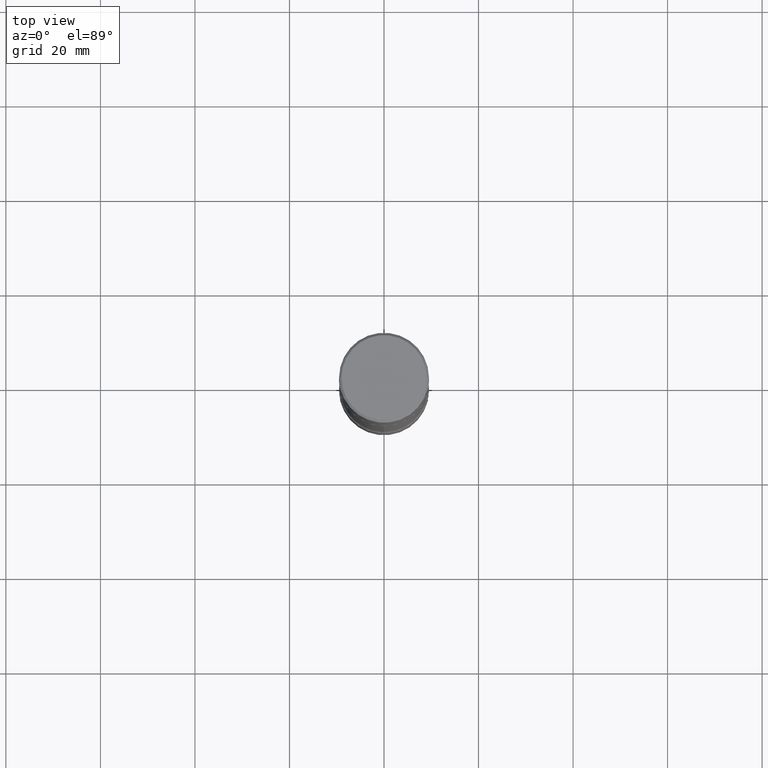
[diagram: clean part render]
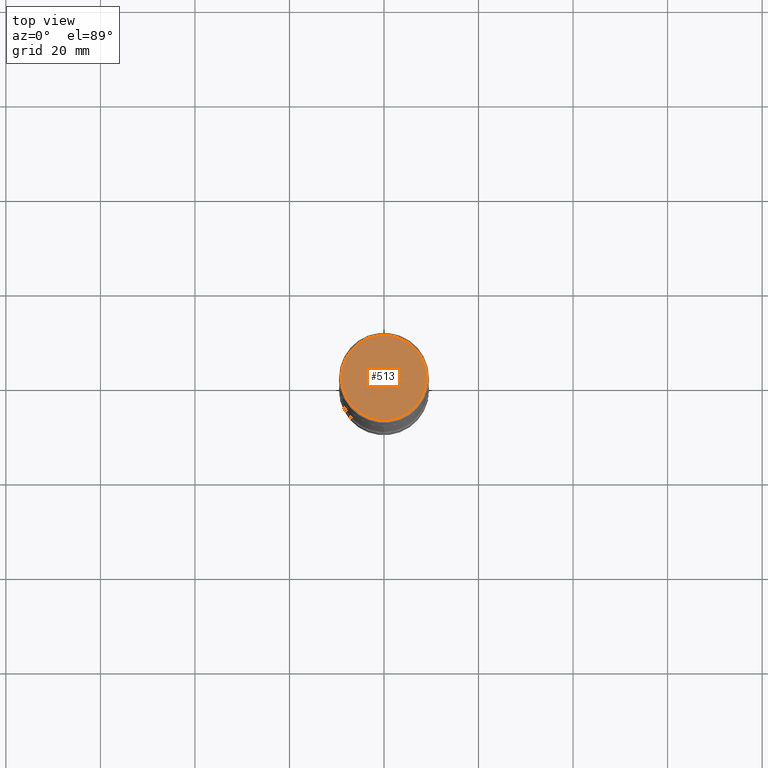
[diagram: same view with one face highlighted and labeled with its STEP entity id]
A machine part, top view. The second image highlights one B-rep face of the part: STEP entity #513.
In plain terms, the highlighted planar face has unit normal (0, -0, -1).
Its self-contained STEP definition (entity closure, byte-faithful):
#27 = AXIS2_PLACEMENT_3D ( 'NONE', #441, #355, #523 ) ;
#54 = EDGE_LOOP ( 'NONE', ( #302, #538 ) ) ;
#125 = EDGE_CURVE ( 'NONE', #153, #267, #252, .T. ) ;
#153 = VERTEX_POINT ( 'NONE', #407 ) ;
#155 = CIRCLE ( 'NONE', #496, 0.3550000000000008149 ) ;
#161 = CARTESIAN_POINT ( 'NONE',  ( 0.3550000000000008149, -2.538996582575045781E-15, 4.268512490117958041E-18 ) ) ;
#169 = DIRECTION ( 'NONE',  ( -2.445468806185136597E-29, 3.491481338843145583E-15, 1.000000000000000000 ) ) ;
#210 = AXIS2_PLACEMENT_3D ( 'NONE', #537, #273, #238 ) ;
#238 = DIRECTION ( 'NONE',  ( 1.000000000000000000, -6.982962677686265922E-15, 4.876231632511976973E-29 ) ) ;
#252 = CIRCLE ( 'NONE', #210, 0.3550000000000008149 ) ;
#262 = PLANE ( 'NONE',  #27 ) ;
#267 = VERTEX_POINT ( 'NONE', #161 ) ;
#273 = DIRECTION ( 'NONE',  ( -2.445468806185136597E-29, 3.491481338843145583E-15, 1.000000000000000000 ) ) ;
#302 = ORIENTED_EDGE ( 'NONE', *, *, #125, .T. ) ;
#342 = DIRECTION ( 'NONE',  ( 1.000000000000000000, -6.982962677686265922E-15, 4.876231632511976973E-29 ) ) ;
#345 = CARTESIAN_POINT ( 'NONE',  ( -1.043851414335219820E-46, 1.490343170380447200E-32, 4.268512490100411279E-18 ) ) ;
#355 = DIRECTION ( 'NONE',  ( 2.438088387897960049E-29, -3.491481338843145188E-15, -1.000000000000000000 ) ) ;
#398 = FACE_OUTER_BOUND ( 'NONE', #54, .T. ) ;
#407 = CARTESIAN_POINT ( 'NONE',  ( -0.3550000000000008149, 2.513866563967061380E-15, 4.268512490082953109E-18 ) ) ;
#441 = CARTESIAN_POINT ( 'NONE',  ( 2.478951750578629731E-15, 0.3550000000000008149, -1.237341619044269188E-15 ) ) ;
#468 = EDGE_CURVE ( 'NONE', #267, #153, #155, .T. ) ;
#496 = AXIS2_PLACEMENT_3D ( 'NONE', #345, #169, #342 ) ;
#513 = ADVANCED_FACE ( 'NONE', ( #398 ), #262, .F. ) ;
#523 = DIRECTION ( 'NONE',  ( -1.000000000000000000, 6.982962677686265922E-15, -4.876176775795935793E-29 ) ) ;
#537 = CARTESIAN_POINT ( 'NONE',  ( -1.043851414335219820E-46, 1.490343170380447200E-32, 4.268512490100411279E-18 ) ) ;
#538 = ORIENTED_EDGE ( 'NONE', *, *, #468, .T. ) ;